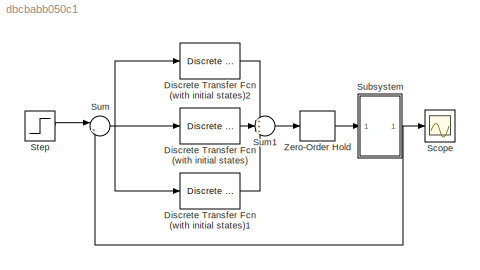
MODEL slx_dbcbabb050c1
KIND model
CONFIG AbsTol = auto
CONFIG EnableMultiTasking = off
CONFIG FixedStep = auto
CONFIG MaxStep = auto
CONFIG MinStep = auto
CONFIG RelTol = 1e-3
CONFIG SampleTimeConstraint = Unconstrained
CONFIG SolverName = VariableStepAuto
CONFIG StartTime = 0.0
CONFIG StopTime = 100
BLOCK [Reference] Discrete Transfer Fcn (with initial states)  REF=simulink_extras/Additional
Discrete/Discrete
Transfer Fcn
(with initial states)
  SourceBlock = simulink_extras/Additional\nDiscrete/Discrete\nTransfer Fcn\n(with initial states)
  SourceType = Discrete Transfer Function with Initial States
BLOCK [Reference] Discrete Transfer Fcn (with initial states)1  REF=simulink_extras/Additional
Discrete/Discrete
Transfer Fcn
(with initial states)
  SourceBlock = simulink_extras/Additional\nDiscrete/Discrete\nTransfer Fcn\n(with initial states)
  SourceType = Discrete Transfer Function with Initial States
BLOCK [Reference] Discrete Transfer Fcn (with initial states)2  REF=simulink_extras/Additional
Discrete/Discrete
Transfer Fcn
(with initial states)
  SourceBlock = simulink_extras/Additional\nDiscrete/Discrete\nTransfer Fcn\n(with initial states)
  SourceType = Discrete Transfer Function with Initial States
BLOCK [Scope] Scope
  Floating = off
  NumInputPorts = 1
  ScopeSpecificationString = Simulink.scopes.TimeScopeBlockCfg('CurrentConfiguration', extmgr.ConfigurationSet(extmgr.Configuration('Core','General UI',true),extmgr.Configuration('Core','Source UI',true),extmgr.Configuration('Sources','WiredSimulink',true),extmgr.Configuration('Visuals','Time Domain',true,'SerializedDisplays',{struct('MinYLimReal','-0.14631','MaxYLimReal','1.31682','YLabelReal','','MinYLimMag','0.00000','MaxY...<+1487ch>
BLOCK [Step] Step
  SampleTime = 0.1
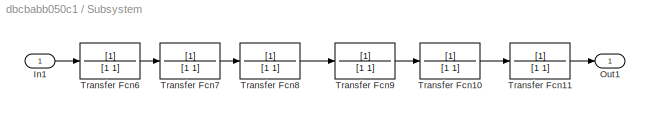
BLOCK [SubSystem] Subsystem
  Permissions = NoReadOrWrite
BLOCK [Inport] Subsystem/In1
BLOCK [Outport] Subsystem/Out1
BLOCK [TransferFcn] Subsystem/Transfer Fcn10
  Denominator = [1 1]
BLOCK [TransferFcn] Subsystem/Transfer Fcn11
  Denominator = [1 1]
BLOCK [TransferFcn] Subsystem/Transfer Fcn6
  Denominator = [1 1]
BLOCK [TransferFcn] Subsystem/Transfer Fcn7
  Denominator = [1 1]
BLOCK [TransferFcn] Subsystem/Transfer Fcn8
  Denominator = [1 1]
BLOCK [TransferFcn] Subsystem/Transfer Fcn9
  Denominator = [1 1]
BLOCK [Sum] Sum
  Inputs = |+-
BLOCK [Sum] Sum1
  Inputs = +++
BLOCK [ZeroOrderHold] Zero-Order Hold
  SampleTime = -1
LINE Discrete Transfer Fcn (with initial states)1:1 -> Sum1:3
LINE Discrete Transfer Fcn (with initial states)2:1 -> Sum1:1
LINE Discrete Transfer Fcn (with initial states):1 -> Sum1:2
LINE Step:1 -> Sum:1
LINE Subsystem/In1:1 -> Subsystem/Transfer Fcn6:1
LINE Subsystem/Transfer Fcn10:1 -> Subsystem/Transfer Fcn11:1
LINE Subsystem/Transfer Fcn11:1 -> Subsystem/Out1:1
LINE Subsystem/Transfer Fcn6:1 -> Subsystem/Transfer Fcn7:1
LINE Subsystem/Transfer Fcn7:1 -> Subsystem/Transfer Fcn8:1
LINE Subsystem/Transfer Fcn8:1 -> Subsystem/Transfer Fcn9:1
LINE Subsystem/Transfer Fcn9:1 -> Subsystem/Transfer Fcn10:1
NET Subsystem:1 -> Scope:1, Sum:2
LINE Sum1:1 -> Zero-Order Hold:1
NET Sum:1 -> Discrete Transfer Fcn (with initial states)1:1, Discrete Transfer Fcn (with initial states)2:1, Discrete Transfer Fcn (with initial states):1
LINE Zero-Order Hold:1 -> Subsystem:1
note: NET lines group one-source signal fan-out (src -> all destinations, sorted); 1:1 wires keep LINE
